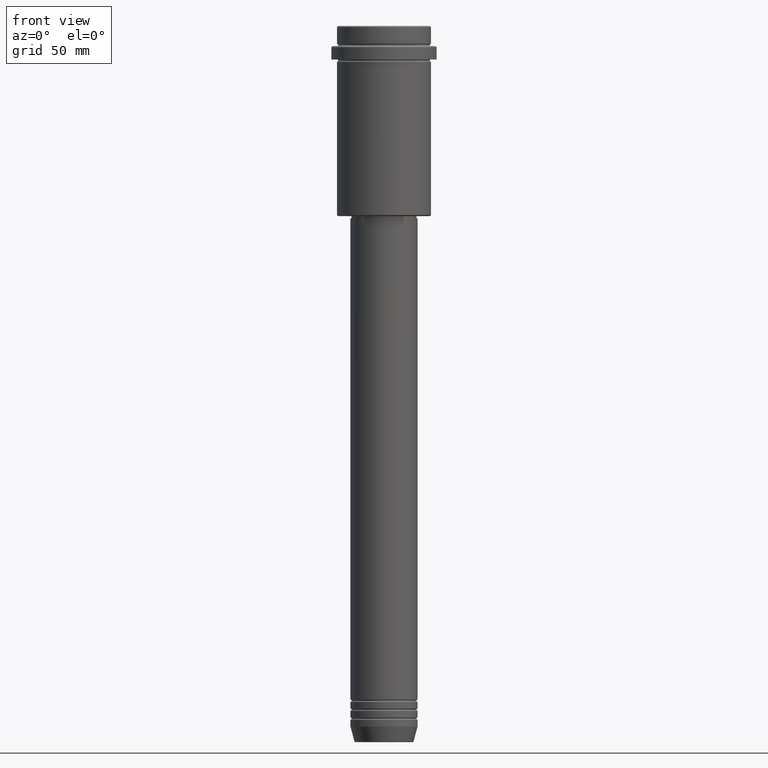
[diagram: clean part render]
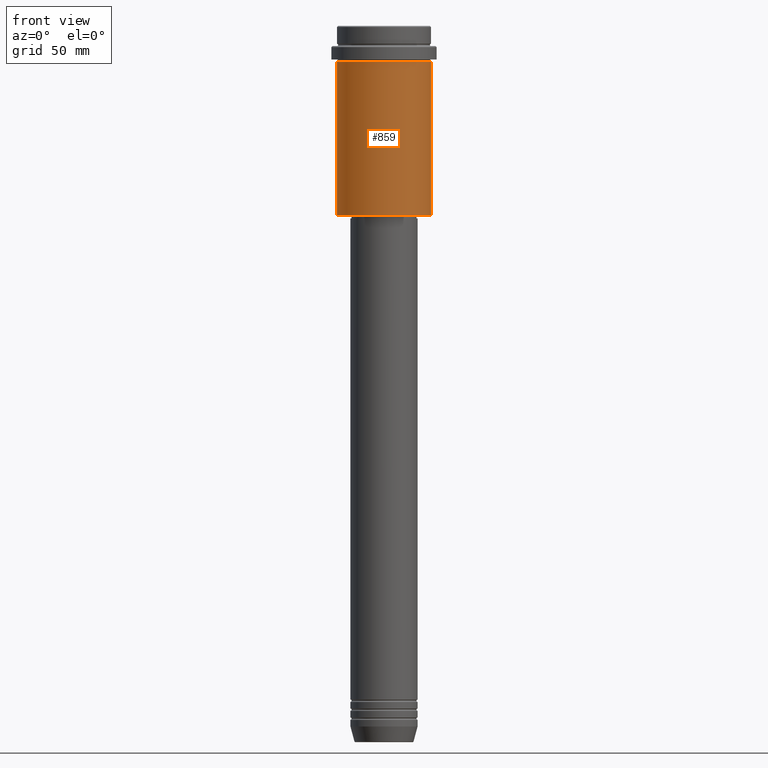
[diagram: same view with one face highlighted and labeled with its STEP entity id]
A machine part, front view. The second image highlights one B-rep face of the part: STEP entity #859.
In plain terms, the highlighted cylindrical surface (partial cylindrical patch) has radius 21 mm, axis along (-0, -0, 1).
Its self-contained STEP definition (entity closure, byte-faithful):
#28 = VECTOR ( 'NONE', #480, 1000.000000000000000 ) ;
#43 = VERTEX_POINT ( 'NONE', #1233 ) ;
#59 = AXIS2_PLACEMENT_3D ( 'NONE', #1399, #113, #536 ) ;
#108 = CARTESIAN_POINT ( 'NONE',  ( 20.99999999999999645, 0.000000000000000000, -16.00000000000000355 ) ) ;
#113 = DIRECTION ( 'NONE',  ( -0.000000000000000000, -0.000000000000000000, 1.000000000000000000 ) ) ;
#234 = AXIS2_PLACEMENT_3D ( 'NONE', #311, #332, #1005 ) ;
#257 = CARTESIAN_POINT ( 'NONE',  ( 20.99999999999999645, 0.000000000000000000, -84.49999999999997158 ) ) ;
#295 = ORIENTED_EDGE ( 'NONE', *, *, #497, .F. ) ;
#311 = CARTESIAN_POINT ( 'NONE',  ( 0.000000000000000000, 0.000000000000000000, 0.000000000000000000 ) ) ;
#332 = DIRECTION ( 'NONE',  ( -0.000000000000000000, -0.000000000000000000, 1.000000000000000000 ) ) ;
#340 = LINE ( 'NONE', #1201, #491 ) ;
#387 = AXIS2_PLACEMENT_3D ( 'NONE', #849, #1284, #1048 ) ;
#480 = DIRECTION ( 'NONE',  ( -0.000000000000000000, -0.000000000000000000, 1.000000000000000000 ) ) ;
#491 = VECTOR ( 'NONE', #562, 1000.000000000000000 ) ;
#497 = EDGE_CURVE ( 'NONE', #567, #1157, #661, .T. ) ;
#506 = ORIENTED_EDGE ( 'NONE', *, *, #1004, .T. ) ;
#515 = CARTESIAN_POINT ( 'NONE',  ( -20.99999999999999645, 2.571758278209441267E-15, -16.00000000000000355 ) ) ;
#536 = DIRECTION ( 'NONE',  ( -1.000000000000000000, 0.000000000000000000, 0.000000000000000000 ) ) ;
#556 = CYLINDRICAL_SURFACE ( 'NONE', #234, 20.99999999999999645 ) ;
#562 = DIRECTION ( 'NONE',  ( -0.000000000000000000, -0.000000000000000000, 1.000000000000000000 ) ) ;
#567 = VERTEX_POINT ( 'NONE', #515 ) ;
#582 = EDGE_CURVE ( 'NONE', #998, #1157, #1378, .T. ) ;
#589 = CIRCLE ( 'NONE', #59, 20.99999999999999645 ) ;
#619 = ORIENTED_EDGE ( 'NONE', *, *, #1248, .F. ) ;
#622 = FACE_OUTER_BOUND ( 'NONE', #705, .T. ) ;
#661 = CIRCLE ( 'NONE', #387, 20.99999999999999645 ) ;
#705 = EDGE_LOOP ( 'NONE', ( #619, #506, #1034, #295 ) ) ;
#849 = CARTESIAN_POINT ( 'NONE',  ( 0.000000000000000000, 0.000000000000000000, -16.00000000000000355 ) ) ;
#855 = CARTESIAN_POINT ( 'NONE',  ( 20.99999999999999645, 0.000000000000000000, 0.000000000000000000 ) ) ;
#859 = ADVANCED_FACE ( 'NONE', ( #622 ), #556, .T. ) ;
#998 = VERTEX_POINT ( 'NONE', #257 ) ;
#1004 = EDGE_CURVE ( 'NONE', #43, #998, #589, .T. ) ;
#1005 = DIRECTION ( 'NONE',  ( 1.000000000000000000, 0.000000000000000000, 0.000000000000000000 ) ) ;
#1034 = ORIENTED_EDGE ( 'NONE', *, *, #582, .T. ) ;
#1048 = DIRECTION ( 'NONE',  ( 1.000000000000000000, 0.000000000000000000, 0.000000000000000000 ) ) ;
#1157 = VERTEX_POINT ( 'NONE', #108 ) ;
#1201 = CARTESIAN_POINT ( 'NONE',  ( -20.99999999999999645, 2.571758278209441267E-15, 0.000000000000000000 ) ) ;
#1233 = CARTESIAN_POINT ( 'NONE',  ( -20.99999999999999645, 2.571758278209441267E-15, -84.49999999999997158 ) ) ;
#1248 = EDGE_CURVE ( 'NONE', #43, #567, #340, .T. ) ;
#1284 = DIRECTION ( 'NONE',  ( -0.000000000000000000, -0.000000000000000000, 1.000000000000000000 ) ) ;
#1378 = LINE ( 'NONE', #855, #28 ) ;
#1399 = CARTESIAN_POINT ( 'NONE',  ( 0.000000000000000000, 0.000000000000000000, -84.49999999999997158 ) ) ;